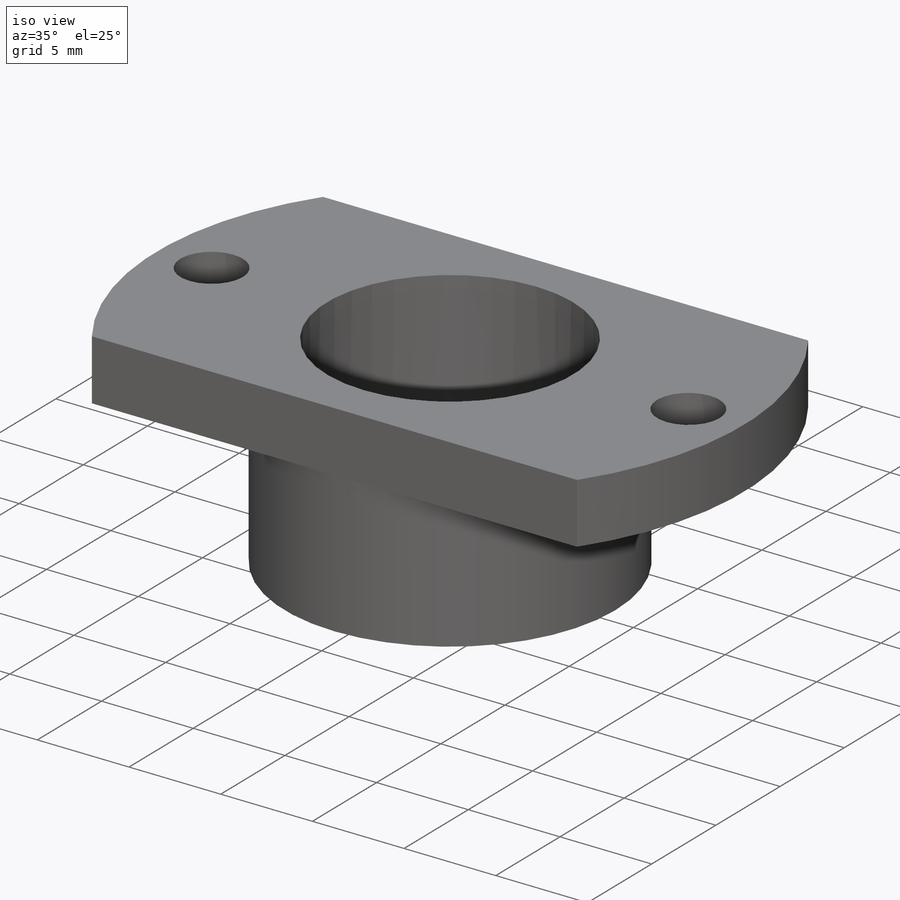
[diagram: iso view]
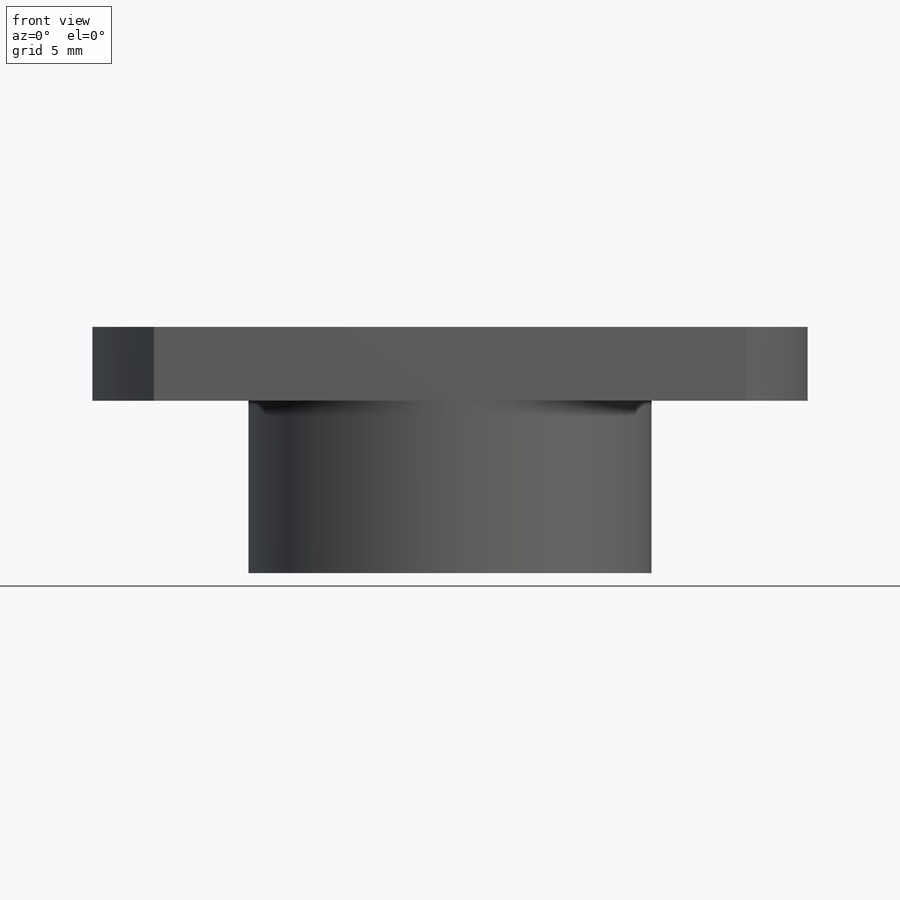
[diagram: front view]
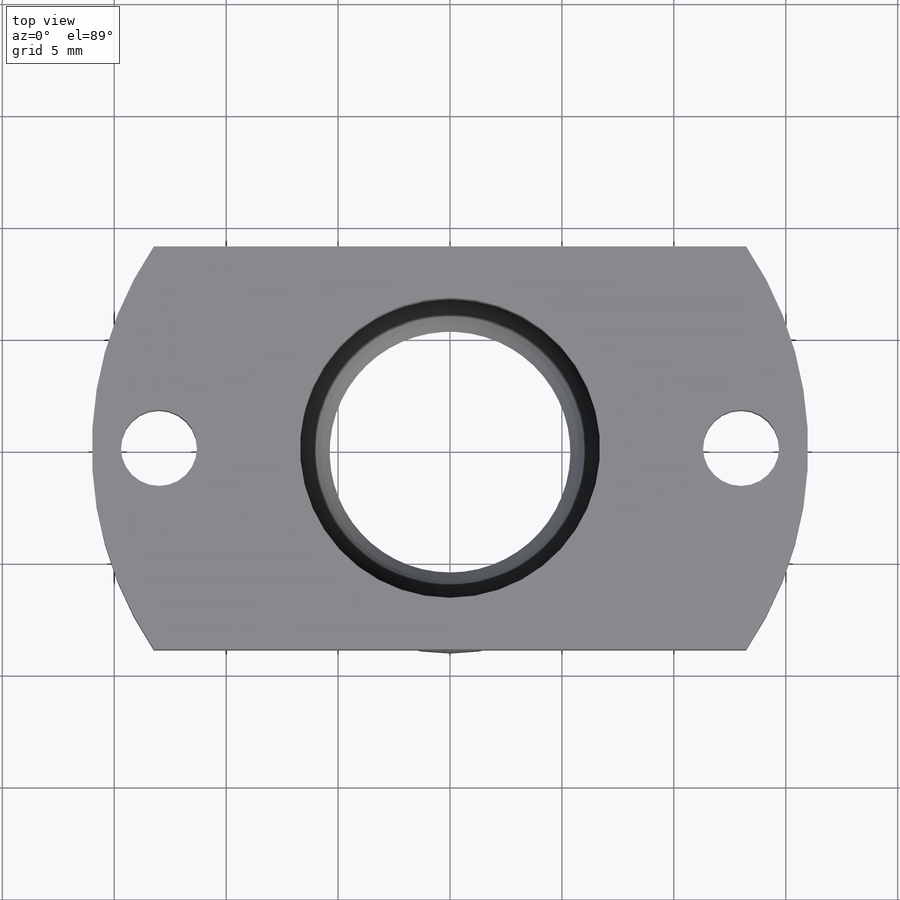
[diagram: top view]
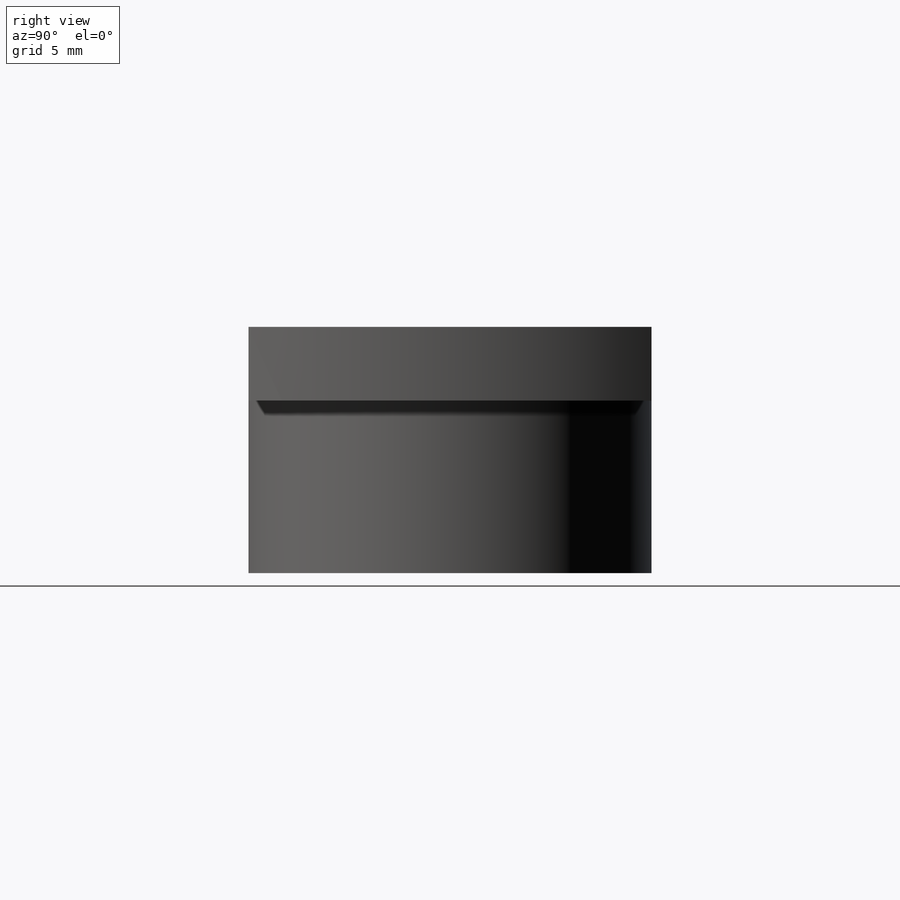
[diagram: right view]
SOLIDWORKS PART (.sldprt)
format: sldprt  version: not decoded by parser v0  size: 195,584 bytes
history: native  units: mm
features: sketch x4, material x1, revolve x1, hole x1, pattern_circular x1, cut_extrude x1 (+11 scaffold rows collapsed)
feature tree (20):
  scaffold x11  (default folders/planes/origin — collapsed)
  material  "ABS"
  sketch  "Sketch1"  dims[c1.D1=10.0mm c1.D2=27.0mm c1.D3=5.0mm c1.D4=3.0mm c1.D5=4.0mm c1.D6=4.0mm c1.D7=4.0mm c2.D5=7.0mm c2.D1=16.0mm c2.D3=3.7mm c2.D4=3.3mm]
  revolve  "Revolve1"  Angle=360deg
  hole  "M3 Clearance Hole1"  Diameter=3.4mm Depth=10mm
  sketch  "Sketch4"  dims[D1=13.0mm]
  sketch  "Sketch3"  dims[hole-wizard template sketch: 50 standard entries collapsed; hole parameters above]
  pattern_circular  "CirPattern2"  Count=2 Angle=360deg
  sketch  "Sketch5"
  cut_extrude  "Cut-Extrude1"  [1 undecoded]
decode coverage: 6 of 8 modeling features carry decoded parameters
note: ~ marks probable driven/reference dimensions
note: 1 parameter value undecoded
note: suppression state not decoded; provenance and decode notes live in map.json
